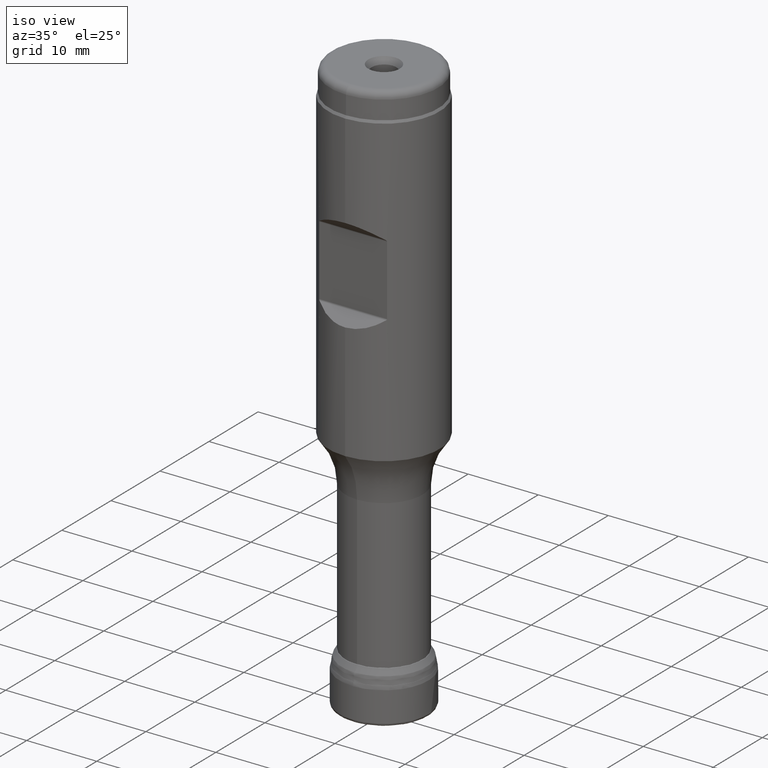
[diagram: clean part render]
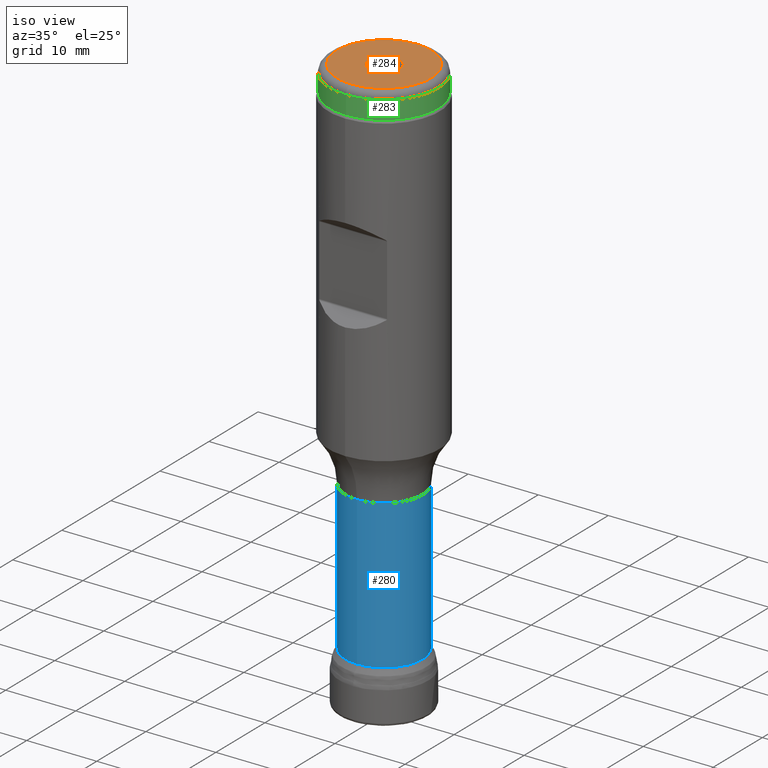
[diagram: same view with three faces highlighted in distinct colors, each labeled with its STEP entity id]
A machine part, iso view with three faces highlighted in distinct colors.
Their STEP definitions:

[orange] entity #284 — the highlighted planar face has unit normal (0, 0, 1).
#212=FACE_BOUND('',#349,.T.);
#213=FACE_BOUND('',#350,.T.);
#284=ADVANCED_FACE('',(#212,#213),#323,.T.);
#323=PLANE('',#725);
#349=EDGE_LOOP('',(#440));
#350=EDGE_LOOP('',(#441));
#440=ORIENTED_EDGE('',*,*,#588,.T.);
#441=ORIENTED_EDGE('',*,*,#589,.T.);
#540=VERTEX_POINT('',#1262);
#541=VERTEX_POINT('',#1264);
#588=EDGE_CURVE('',#540,#540,#631,.T.);
#589=EDGE_CURVE('',#541,#541,#632,.T.);
#631=CIRCLE('',#723,2.25);
#632=CIRCLE('',#724,6.7375);
#723=AXIS2_PLACEMENT_3D('',#1261,#815,#816);
#724=AXIS2_PLACEMENT_3D('',#1263,#817,#818);
#725=AXIS2_PLACEMENT_3D('',#1265,#819,#820);
#815=DIRECTION('',(0.,-1.17145536458252E-15,-1.));
#816=DIRECTION('',(0.,-1.,0.));
#817=DIRECTION('',(0.,1.17145536458252E-15,1.));
#818=DIRECTION('',(0.,-1.,2.05978297704111E-15));
#819=DIRECTION('',(0.,1.17145536458252E-15,1.));
#820=DIRECTION('',(0.,-1.,1.16573417585641E-15));
#1261=CARTESIAN_POINT('',(0.,9.67036403462874E-14,82.55));
#1262=CARTESIAN_POINT('',(0.,-2.2499999999999,82.55));
#1263=CARTESIAN_POINT('',(0.,9.67036403462874E-14,82.55));
#1264=CARTESIAN_POINT('',(0.,-6.7374999999999,82.55));
#1265=CARTESIAN_POINT('',(0.,9.67036403462874E-14,82.55));

[blue] entity #280 — the highlighted cylindrical surface (bore or boss wall) has radius 5.5 mm, axis along (0, 0, 1).
#186=CYLINDRICAL_SURFACE('',#713,5.5);
#203=FACE_BOUND('',#340,.T.);
#204=FACE_BOUND('',#341,.T.);
#280=ADVANCED_FACE('',(#203,#204),#186,.T.);
#340=EDGE_LOOP('',(#424));
#341=EDGE_LOOP('',(#425));
#424=ORIENTED_EDGE('',*,*,#574,.T.);
#425=ORIENTED_EDGE('',*,*,#575,.T.);
#526=VERTEX_POINT('',#1188);
#527=VERTEX_POINT('',#1190);
#574=EDGE_CURVE('',#526,#526,#625,.T.);
#575=EDGE_CURVE('',#527,#527,#626,.T.);
#625=CIRCLE('',#711,5.5);
#626=CIRCLE('',#712,5.5);
#711=AXIS2_PLACEMENT_3D('',#1187,#789,#790);
#712=AXIS2_PLACEMENT_3D('',#1189,#791,#792);
#713=AXIS2_PLACEMENT_3D('',#1191,#793,#794);
#789=DIRECTION('',(0.,1.17145536458252E-15,1.));
#790=DIRECTION('',(0.,-1.,1.10391493925797E-15));
#791=DIRECTION('',(0.,-1.17145536458252E-15,-1.));
#792=DIRECTION('',(0.,-1.,1.26161707343768E-15));
#793=DIRECTION('',(0.,1.17145536458252E-15,1.));
#794=DIRECTION('',(0.,-1.,1.17145536458252E-15));
#1187=CARTESIAN_POINT('',(0.,8.42687047500039E-15,7.19350538635632));
#1188=CARTESIAN_POINT('',(0.,-5.49999999999999,7.19350538635633));
#1189=CARTESIAN_POINT('',(0.,3.3337712948423E-14,28.4583723429392));
#1190=CARTESIAN_POINT('',(0.,-5.49999999999997,28.4583723429392));
#1191=CARTESIAN_POINT('',(0.,0.,0.));

[green] entity #283 — the highlighted cylindrical surface (bore or boss wall) has radius 7.7375 mm, axis along (0, 0, 1).
#188=CYLINDRICAL_SURFACE('',#722,7.7375);
#210=FACE_BOUND('',#347,.T.);
#211=FACE_BOUND('',#348,.T.);
#283=ADVANCED_FACE('',(#210,#211),#188,.T.);
#347=EDGE_LOOP('',(#438));
#348=EDGE_LOOP('',(#439));
#438=ORIENTED_EDGE('',*,*,#587,.T.);
#439=ORIENTED_EDGE('',*,*,#586,.T.);
#538=VERTEX_POINT('',#1256);
#539=VERTEX_POINT('',#1259);
#586=EDGE_CURVE('',#538,#538,#629,.T.);
#587=EDGE_CURVE('',#539,#539,#630,.T.);
#629=CIRCLE('',#719,7.7375);
#630=CIRCLE('',#721,7.7375);
#719=AXIS2_PLACEMENT_3D('',#1255,#807,#808);
#721=AXIS2_PLACEMENT_3D('',#1258,#811,#812);
#722=AXIS2_PLACEMENT_3D('',#1260,#813,#814);
#807=DIRECTION('',(0.,1.17145536458252E-15,1.));
#808=DIRECTION('',(0.,-1.,1.79357516094533E-15));
#811=DIRECTION('',(0.,-1.17145536458252E-15,-1.));
#812=DIRECTION('',(0.,-1.,1.79357516094533E-15));
#813=DIRECTION('',(0.,1.17145536458252E-15,1.));
#814=DIRECTION('',(0.,-1.,1.17145536458252E-15));
#1255=CARTESIAN_POINT('',(0.,9.24236229300085E-14,78.8964101615138));
#1256=CARTESIAN_POINT('',(0.,-7.73749999999991,78.8964101615138));
#1258=CARTESIAN_POINT('',(0.,9.55321849817048E-14,81.55));
#1259=CARTESIAN_POINT('',(0.,-7.7374999999999,81.55));
#1260=CARTESIAN_POINT('',(0.,0.,0.));